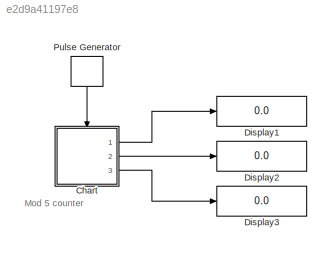
MODEL slx_e2d9a41197e8
KIND model
CONFIG AbsTol = auto
CONFIG EnableMultiTasking = off
CONFIG FixedStep = auto
CONFIG MaxStep = auto
CONFIG MinStep = auto
CONFIG RelTol = 1e-3
CONFIG SampleTimeConstraint = Unconstrained
CONFIG Solver = VariableStepAuto
CONFIG SolverName = VariableStepAuto
CONFIG StartTime = 0.0
CONFIG StopTime = 10.0
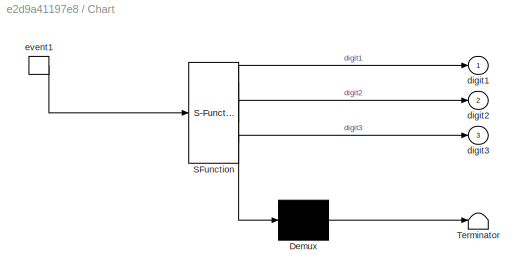
BLOCK [SubSystem] Chart
  ErrorFcn = Stateflow.Translate.translate
  PermitHierarchicalResolution = ExplicitOnly
  Ports = [0, 3, 0, 1]
  RequestExecContextInheritance = off
  SFBlockType = Chart
  TreatAsAtomicUnit = on
BLOCK [Demux] Chart/ Demux 
  Outputs = 1
  Ports = [1, 1]
BLOCK [S-Function] Chart/ SFunction 
  EnableBusSupport = on
  FunctionName = sf_sfun
  PortCounts = [1 4]
  Ports = [1, 4]
  SFcnIsStateOwnerBlock = off
  SFunctionDeploymentMode = off
  Tag = Stateflow S-Function 3
BLOCK [Terminator] Chart/ Terminator 
BLOCK [Outport] Chart/digit1
BLOCK [Outport] Chart/digit2
  Port = 2
BLOCK [Outport] Chart/digit3
  Port = 3
BLOCK [TriggerPort] Chart/event1
  Ports = [0, 1]
  ShowOutputPort = on
  StatesWhenEnabling = held
  VariantControl = (inherit)
BLOCK [Display] Display1
  Decimation = 1
  Ports = [1]
BLOCK [Display] Display2
  Decimation = 1
  Ports = [1]
BLOCK [Display] Display3
  Decimation = 1
  Ports = [1]
BLOCK [DiscretePulseGenerator] Pulse Generator
  NameLocation = top
  Period = 0.01
  PhaseDelay = 0.1
  Ports = [0, 1]
  PulseType = Time based
  PulseWidth = 5
ANNOTATION (root): Mod 5 counter
LINE Chart:1 -> Display1:1
LINE Chart:2 -> Display2:1
LINE Chart:3 -> Display3:1
LINE Pulse Generator:1 -> Chart:trigger
CHART Chart states=18 transitions=18
  STATE_LABEL 'state_digit_one'
  STATE_LABEL 'state_zero\nentry: digit1=0;'
  STATE_LABEL 'state_one\nentry: digit1=1;'
  STATE_LABEL 'state_two\nentry: digit1=2;'
  STATE_LABEL 'state_four\nentry: digit1=4;'
  STATE_LABEL 'state_three\nentry: digit1=3;'
  STATE_LABEL 'event1'
  STATE_LABEL 'event1'
  STATE_LABEL 'event1/{event2}'
  STATE_LABEL 'event1'
  STATE_LABEL 'event1'
  STATE_LABEL 'state_zero\nentry: digit1=0;'
  STATE_LABEL 'state_one\nentry: digit1=1;'
  STATE_LABEL 'state_two\nentry: digit1=2;'
  STATE_LABEL 'state_four\nentry: digit1=4;'
  STATE_LABEL 'state_three\nentry: digit1=3;'
  STATE_LABEL 'state_digit_two'
  STATE_LABEL 'state_zero\nentry: digit2=0;'
  STATE_LABEL 'state_one\nentry: digit2=1;'
  STATE_LABEL 'state_two\nentry: digit2=2;'
  STATE_LABEL 'state_four\nentry: digit2=4;'
  STATE_LABEL 'state_three\nentry: digit2=3;'
  STATE_LABEL 'event2'
  STATE_LABEL 'event2'
  STATE_LABEL 'event2/{event3}'
  STATE_LABEL 'event2'
  STATE_LABEL 'event2'
  STATE_LABEL 'state_zero\nentry: digit2=0;'
  STATE_LABEL 'state_one\nentry: digit2=1;'
  STATE_LABEL 'state_two\nentry: digit2=2;'
  STATE_LABEL 'state_four\nentry: digit2=4;'
  STATE_LABEL 'state_three\nentry: digit2=3;'
  STATE_LABEL 'state_digit_three'
  STATE_LABEL 'state_zero\nentry: digit3=0;'
  STATE_LABEL 'state_one\nentry: digit3=1;'
  STATE_LABEL 'state_two\nentry: digit3=2;'
  STATE_LABEL 'state_four\nentry: digit3=4;'
  STATE_LABEL 'state_three\nentry: digit3=3;'
  STATE_LABEL 'event3'
  STATE_LABEL 'event3'
CHART  states=0 transitions=0
